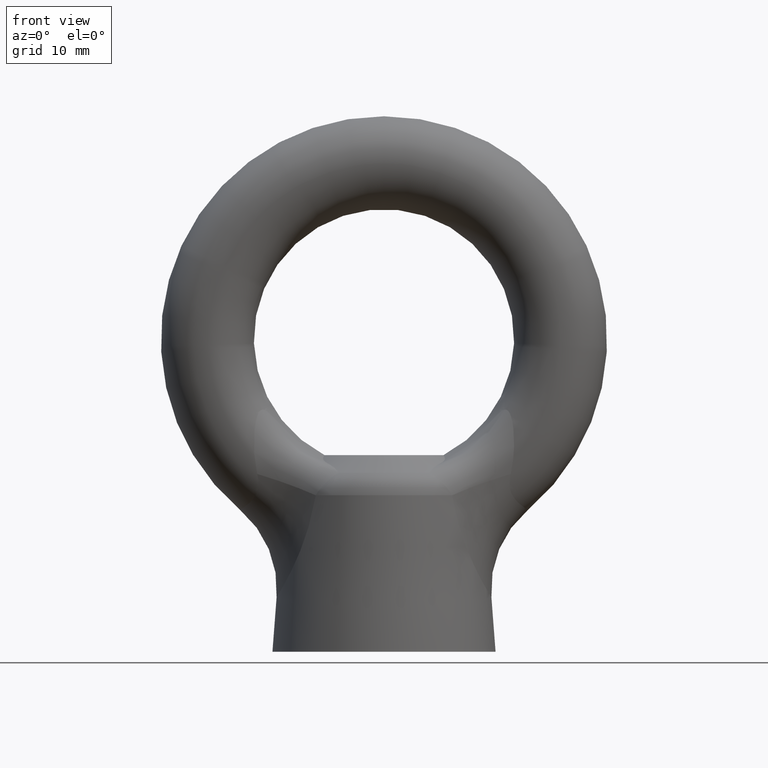
[diagram: clean part render]
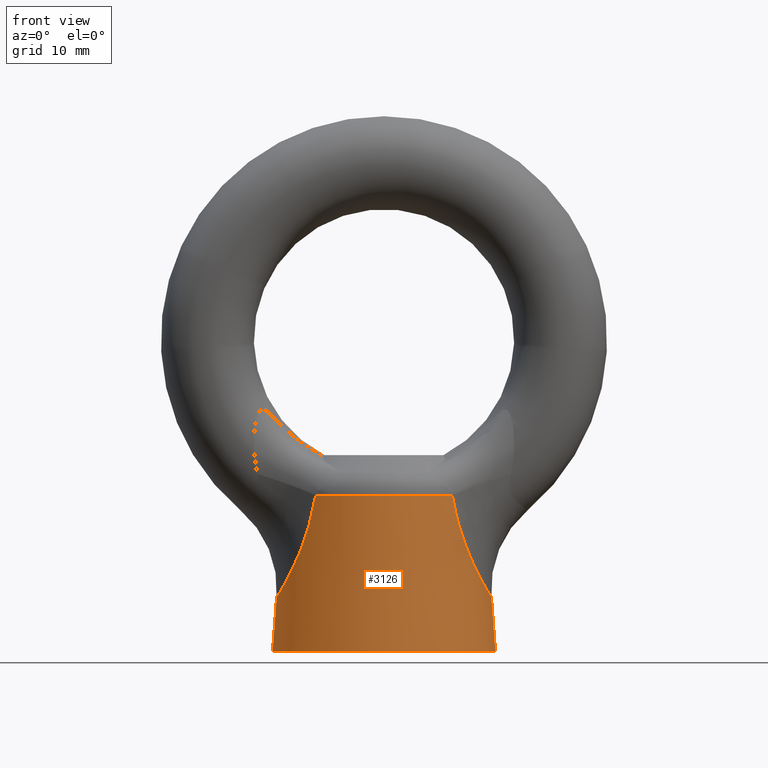
[diagram: same view with one face highlighted and labeled with its STEP entity id]
A machine part, front view. The second image highlights one B-rep face of the part: STEP entity #3126.
In plain terms, the highlighted conical surface has half-angle 4.351 deg.
Its self-contained STEP definition (entity closure, byte-faithful):
#2943 = VERTEX_POINT ( 'NONE', #4178 ) ;
#3074 = VERTEX_POINT ( 'NONE', #7923 ) ;
#3077 = EDGE_CURVE ( 'NONE', #3078, #3214, #7922, .T. ) ;
#3078 = VERTEX_POINT ( 'NONE', #7992 ) ;
#3126 = ADVANCED_FACE ( 'NONE', ( #8016 ), #8015, .T. ) ;
#3127 = EDGE_LOOP ( 'NONE', ( #3128, #3129, #3132, #3135, #3150, #3151 ) ) ;
#3128 = ORIENTED_EDGE ( 'NONE', *, *, #3188, .F. ) ;
#3129 = ORIENTED_EDGE ( 'NONE', *, *, #3130, .T. ) ;
#3130 = EDGE_CURVE ( 'NONE', #2943, #3131, #7995, .T. ) ;
#3131 = VERTEX_POINT ( 'NONE', #7994 ) ;
#3132 = ORIENTED_EDGE ( 'NONE', *, *, #3133, .T. ) ;
#3133 = EDGE_CURVE ( 'NONE', #3131, #3134, #8070, .T. ) ;
#3134 = VERTEX_POINT ( 'NONE', #8071 ) ;
#3135 = ORIENTED_EDGE ( 'NONE', *, *, #3149, .T. ) ;
#3149 = EDGE_CURVE ( 'NONE', #3134, #3078, #8124, .T. ) ;
#3150 = ORIENTED_EDGE ( 'NONE', *, *, #3077, .T. ) ;
#3151 = ORIENTED_EDGE ( 'NONE', *, *, #3152, .F. ) ;
#3152 = EDGE_CURVE ( 'NONE', #3074, #3214, #8123, .T. ) ;
#3188 = EDGE_CURVE ( 'NONE', #2943, #3074, #8207, .T. ) ;
#3214 = VERTEX_POINT ( 'NONE', #8197 ) ;
#4178 = CARTESIAN_POINT ( 'NONE',  ( 14.44212947466842300, 1.776239888956626400E-011, -34.66774851268994700 ) ) ;
#7920 = DIRECTION ( 'NONE',  ( -0.07586520857541637100, 0.0000000000000000000, -0.9971180823392024100 ) ) ;
#7921 = CARTESIAN_POINT ( 'NONE',  ( -15.00000000000000000, 0.0000000000000000000, -42.00000000000000000 ) ) ;
#7922 = LINE ( 'NONE', #7921, #7993 ) ;
#7923 = CARTESIAN_POINT ( 'NONE',  ( 15.00000000000000000, 1.836909530733565900E-015, -42.00000000000000000 ) ) ;
#7966 = CARTESIAN_POINT ( 'NONE',  ( 0.0000000000000000000, 0.0000000000000000000, -42.00000000000000000 ) ) ;
#7992 = CARTESIAN_POINT ( 'NONE',  ( -14.44212947466842300, -1.781214476940803500E-011, -34.66774851268994700 ) ) ;
#7993 = VECTOR ( 'NONE', #7920, 1000.000000000000100 ) ;
#7994 = CARTESIAN_POINT ( 'NONE',  ( 9.180284082713130900, -9.760637840941839700, -20.96469496878929900 ) ) ;
#7995 = B_SPLINE_CURVE_WITH_KNOTS ( 'NONE', 3,
 ( #8065, #8064, #8063, #8062, #8061, #8060, #8059, #8058, #8057, #8056, #8055, #8054, #8053, #8052, #8051, #8050, #8049, #8048, #8047, #8046, #8045, #8044 ),
 .UNSPECIFIED., .F., .F.,
 ( 4, 2, 2, 2, 2, 2, 2, 2, 2, 2, 4 ),
 ( 0.01950934908826385000, 0.02072963805386145900, 0.02194992701945906700, 0.02317021598505667600, 0.02439050495065428500, 0.02683108288184948800, 0.02927166081304469200, 0.03049194977864230100, 0.03171223874423990300, 0.03415281667543512000, 0.03903397253782554800 ),
 .UNSPECIFIED. ) ;
#7996 = DIRECTION ( 'NONE',  ( -1.000000000000000000, 0.0000000000000000000, 0.0000000000000000000 ) ) ;
#7997 = DIRECTION ( 'NONE',  ( 0.0000000000000000000, 0.0000000000000000000, -1.000000000000000000 ) ) ;
#7998 = AXIS2_PLACEMENT_3D ( 'NONE', #7966, #7997, #7996 ) ;
#8015 = CONICAL_SURFACE ( 'NONE', #7998, 15.00000000000000000, 0.07593817178674543100 ) ;
#8016 = FACE_OUTER_BOUND ( 'NONE', #3127, .T. ) ;
#8044 = CARTESIAN_POINT ( 'NONE',  ( 9.180284082713130900, -9.760637840941839700, -20.96469496878929900 ) ) ;
#8045 = CARTESIAN_POINT ( 'NONE',  ( 9.449157529654112200, -9.675107437882768800, -22.56695898268929700 ) ) ;
#8046 = CARTESIAN_POINT ( 'NONE',  ( 9.811258133694813900, -9.493843747931000700, -24.13481507131608000 ) ) ;
#8047 = CARTESIAN_POINT ( 'NONE',  ( 10.50876141172326000, -8.971344426346117700, -26.41751154318326300 ) ) ;
#8048 = CARTESIAN_POINT ( 'NONE',  ( 10.76333505901933800, -8.757079076136417200, -27.15658943714643000 ) ) ;
#8049 = CARTESIAN_POINT ( 'NONE',  ( 11.17145135194289700, -8.360496311159545600, -28.22851096206917300 ) ) ;
#8050 = CARTESIAN_POINT ( 'NONE',  ( 11.31185178321079800, -8.215705035040167900, -28.57974928085269900 ) ) ;
#8051 = CARTESIAN_POINT ( 'NONE',  ( 11.59989421399507100, -7.897336944906798300, -29.26936569879102400 ) ) ;
#8052 = CARTESIAN_POINT ( 'NONE',  ( 11.74795486384411100, -7.723166379145713000, -29.60858218750221100 ) ) ;
#8053 = CARTESIAN_POINT ( 'NONE',  ( 12.19338322725103300, -7.159576785608716200, -30.59062415893197700 ) ) ;
#8054 = CARTESIAN_POINT ( 'NONE',  ( 12.49395726582313400, -6.728098887474772000, -31.20270228469305700 ) ) ;
#8055 = CARTESIAN_POINT ( 'NONE',  ( 13.07901292293695400, -5.722357401620563200, -32.33006417586918200 ) ) ;
#8056 = CARTESIAN_POINT ( 'NONE',  ( 13.36579204452693900, -5.139966717383918700, -32.84865894272248000 ) ) ;
#8057 = CARTESIAN_POINT ( 'NONE',  ( 13.73412363389773300, -4.181992904458734700, -33.49163842974154200 ) ) ;
#8058 = CARTESIAN_POINT ( 'NONE',  ( 13.84742142685073100, -3.847568171841557700, -33.68516369359687700 ) ) ;
#8059 = CARTESIAN_POINT ( 'NONE',  ( 14.05035282577656600, -3.144962643407923000, -34.02714675956085700 ) ) ;
#8060 = CARTESIAN_POINT ( 'NONE',  ( 14.14049520684092800, -2.774180635638280500, -34.17643498045195800 ) ) ;
#8061 = CARTESIAN_POINT ( 'NONE',  ( 14.28839983252728100, -2.005987183954851100, -34.41929120912889300 ) ) ;
#8062 = CARTESIAN_POINT ( 'NONE',  ( 14.34609441748236800, -1.608122309744247600, -34.51279681995102800 ) ) ;
#8063 = CARTESIAN_POINT ( 'NONE',  ( 14.42279363825856600, -0.8073231911410888600, -34.63674688877015500 ) ) ;
#8064 = CARTESIAN_POINT ( 'NONE',  ( 14.44212947466899500, -0.4047527916969973500, -34.66774851269087100 ) ) ;
#8065 = CARTESIAN_POINT ( 'NONE',  ( 14.44212947466842300, 1.776239888956626400E-011, -34.66774851268994700 ) ) ;
#8066 = DIRECTION ( 'NONE',  ( 1.000000000000000000, 0.0000000000000000000, 0.0000000000000000000 ) ) ;
#8067 = DIRECTION ( 'NONE',  ( 0.0000000000000000000, 0.0000000000000000000, -1.000000000000000000 ) ) ;
#8068 = CARTESIAN_POINT ( 'NONE',  ( 0.0000000000000000000, 0.0000000000000000000, -20.96469496878929900 ) ) ;
#8069 = AXIS2_PLACEMENT_3D ( 'NONE', #8068, #8067, #8066 ) ;
#8070 = CIRCLE ( 'NONE', #8069, 13.39953980184924000 ) ;
#8071 = CARTESIAN_POINT ( 'NONE',  ( -9.180284082713130900, -9.760637840941839700, -20.96469496878929900 ) ) ;
#8110 = CARTESIAN_POINT ( 'NONE',  ( -10.50687735252761200, -8.972800392968149900, -26.41151956013909800 ) ) ;
#8111 = CARTESIAN_POINT ( 'NONE',  ( -10.04433736295403400, -9.319199480539003500, -24.89743153584450000 ) ) ;
#8112 = CARTESIAN_POINT ( 'NONE',  ( -9.837358048583105600, -9.450876147445358200, -24.12677703600594400 ) ) ;
#8113 = CARTESIAN_POINT ( 'NONE',  ( -9.472584852460201400, -9.650277951098972900, -22.56138647775120600 ) ) ;
#8114 = CARTESIAN_POINT ( 'NONE',  ( -9.314656186404173300, -9.717893195387077300, -21.76544189514494900 ) ) ;
#8115 = CARTESIAN_POINT ( 'NONE',  ( -9.180284082713130900, -9.760637840941839700, -20.96469496878929900 ) ) ;
#8119 = DIRECTION ( 'NONE',  ( -1.000000000000000000, 0.0000000000000000000, 0.0000000000000000000 ) ) ;
#8120 = DIRECTION ( 'NONE',  ( 0.0000000000000000000, 0.0000000000000000000, -1.000000000000000000 ) ) ;
#8121 = CARTESIAN_POINT ( 'NONE',  ( 0.0000000000000000000, 0.0000000000000000000, -42.00000000000000000 ) ) ;
#8122 = AXIS2_PLACEMENT_3D ( 'NONE', #8121, #8120, #8119 ) ;
#8123 = CIRCLE ( 'NONE', #8122, 15.00000000000000000 ) ;
#8124 = B_SPLINE_CURVE_WITH_KNOTS ( 'NONE', 3,
 ( #8115, #8114, #8113, #8112, #8111, #8110, #8187, #8186, #8185, #8184, #8183, #8182, #8181, #8180, #8179, #8178, #8177, #8176, #8175, #8174, #8173, #8172, #8171, #8170 ),
 .UNSPECIFIED., .F., .F.,
 ( 4, 2, 2, 2, 2, 2, 2, 2, 2, 2, 2, 4 ),
 ( 4.606009340377051900E-017, 0.002438668636033028100, 0.004877337272066010200, 0.007316005908098992300, 0.009754674544131975200, 0.01219334318016495600, 0.01341267749818143800, 0.01463201181619792200, 0.01585134613421440200, 0.01707068045223088600, 0.01829001477024736600, 0.01950934908826385000 ),
 .UNSPECIFIED. ) ;
#8170 = CARTESIAN_POINT ( 'NONE',  ( -14.44212947466842300, -1.781214476940803500E-011, -34.66774851268994700 ) ) ;
#8171 = CARTESIAN_POINT ( 'NONE',  ( -14.44212947466785500, -0.4044361484747424600, -34.66774851268904500 ) ) ;
#8172 = CARTESIAN_POINT ( 'NONE',  ( -14.42240434046879300, -0.8143176262513340800, -34.63612259388461500 ) ) ;
#8173 = CARTESIAN_POINT ( 'NONE',  ( -14.34479157466078200, -1.618730310850817300, -34.51068641804546600 ) ) ;
#8174 = CARTESIAN_POINT ( 'NONE',  ( -14.28669166874691000, -2.016053298919600500, -34.41650237985503200 ) ) ;
#8175 = CARTESIAN_POINT ( 'NONE',  ( -14.13940883152153900, -2.778606008612394300, -34.17463493105353200 ) ) ;
#8176 = CARTESIAN_POINT ( 'NONE',  ( -14.05038256567616600, -3.145064014927150300, -34.02720609316610700 ) ) ;
#8177 = CARTESIAN_POINT ( 'NONE',  ( -13.84632360693384700, -3.851163720843117800, -33.68330436701455700 ) ) ;
#8178 = CARTESIAN_POINT ( 'NONE',  ( -13.73066688601297600, -4.192142933519100700, -33.48572896347079800 ) ) ;
#8179 = CARTESIAN_POINT ( 'NONE',  ( -13.48121855039551800, -4.838549137240391900, -33.05002333132990300 ) ) ;
#8180 = CARTESIAN_POINT ( 'NONE',  ( -13.34772401597814100, -5.143531294500272500, -32.81238328782366400 ) ) ;
#8181 = CARTESIAN_POINT ( 'NONE',  ( -13.07177092022509900, -5.714080450193738300, -32.30818766832523200 ) ) ;
#8182 = CARTESIAN_POINT ( 'NONE',  ( -12.92876468837281400, -5.981016671676838900, -32.04068819193776800 ) ) ;
#8183 = CARTESIAN_POINT ( 'NONE',  ( -12.49038418085320500, -6.733476923712654400, -31.19552751687681900 ) ) ;
#8184 = CARTESIAN_POINT ( 'NONE',  ( -12.18375463359328500, -7.172687532367672400, -30.57029440491712100 ) ) ;
#8185 = CARTESIAN_POINT ( 'NONE',  ( -11.59298164557836600, -7.918296577346717800, -29.26598723930404200 ) ) ;
#8186 = CARTESIAN_POINT ( 'NONE',  ( -11.30601740713636100, -8.229785761720787500, -28.58205961552910800 ) ) ;
#8187 = CARTESIAN_POINT ( 'NONE',  ( -10.76352535829999500, -8.756841414477941400, -27.15697943711907700 ) ) ;
#8197 = CARTESIAN_POINT ( 'NONE',  ( -15.00000000000000000, 0.0000000000000000000, -42.00000000000000000 ) ) ;
#8198 = DIRECTION ( 'NONE',  ( 0.07586520857541637100, 9.290501645551477600E-018, -0.9971180823392024100 ) ) ;
#8199 = VECTOR ( 'NONE', #8198, 1000.000000000000100 ) ;
#8206 = CARTESIAN_POINT ( 'NONE',  ( 15.00000000000000000, 1.836909530733565900E-015, -42.00000000000000000 ) ) ;
#8207 = LINE ( 'NONE', #8206, #8199 ) ;